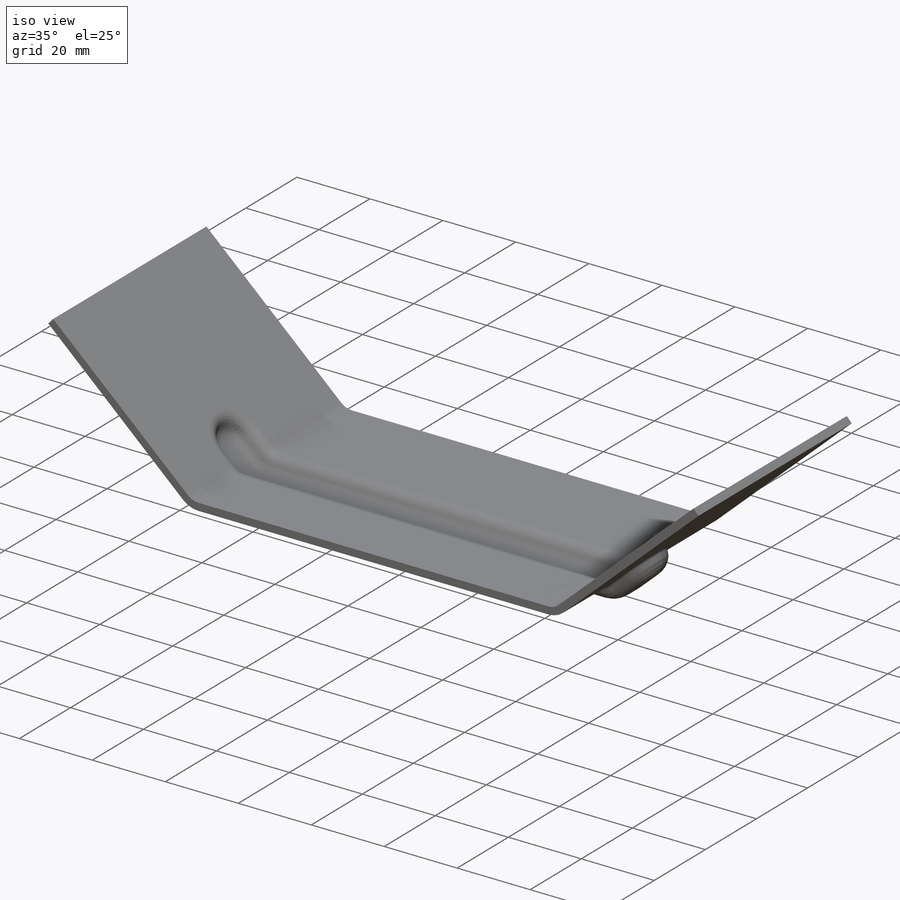
[diagram: iso view]
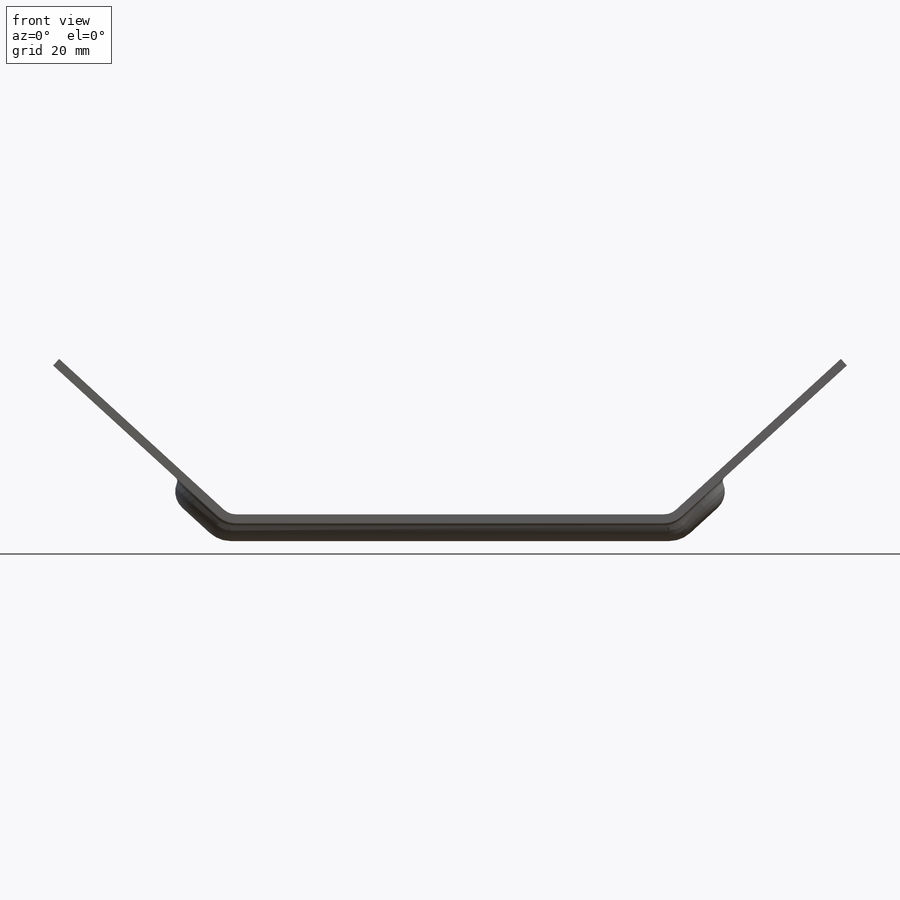
[diagram: front view]
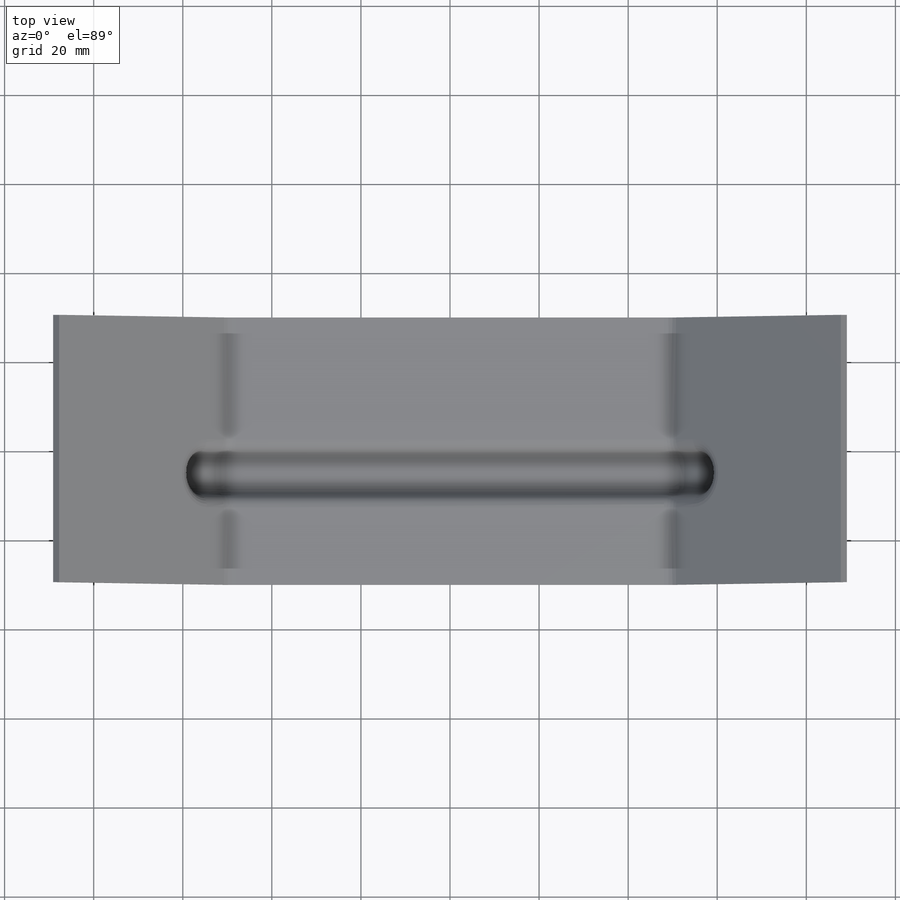
[diagram: top view]
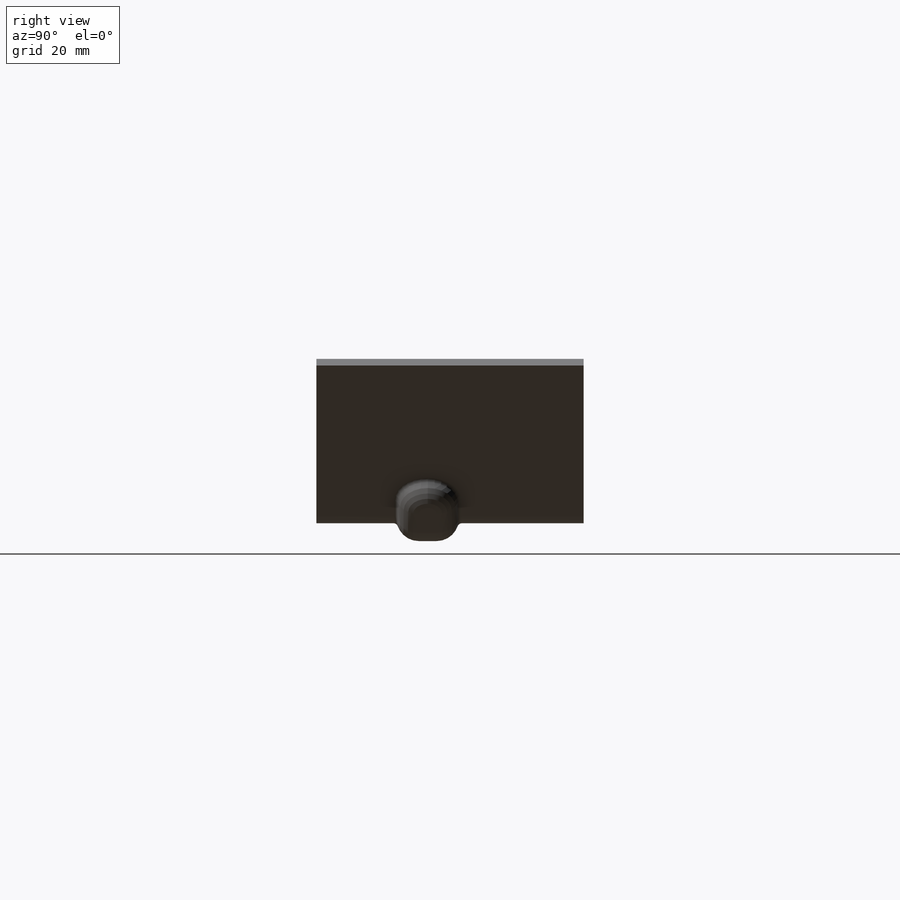
[diagram: right view]
SOLIDWORKS PART (.sldprt)
format: sldprt  version: not decoded by parser v0  size: 377,344 bytes
history: native  units: mm
features: sheet_metal_op x5, fillet x4, plane x3, material x1, sketch x1, delete_body x1 + 3 further entries (+13 scaffold rows collapsed)
feature tree (31):
  scaffold x13  (default folders/planes/origin — collapsed)
  material  "Materiał <nieokreślony>"
  plane  "Płaszczyzna przednia"
  plane  "Płaszczyzna górna"
  plane  "Płaszczyzna prawa"
  sketch  "Szkic1"
  sheet_metal_op  "Arkusz blachy1"  Grubość=2mm
  sheet_metal_op  "Odgięcie bazowe1"
  sheet_metal_op  "Zgięcie bazowe2"
  sheet_metal_op  "Szkic1<2>"
  fillet  "Zaokrąglenie1"  Radius=5mm
  fillet  "Zaokrąglenie2"  Radius=5mm
  fillet  "Zaokrąglenie3"  Radius=3mm
  delete_body  "Obiekt-Usuń1"
  fillet  "Zaokrąglenie4"  Radius=3mm
  "Rozłożony model1"
  sheet_metal_op  "Linie zgięcia1"
  "Rozłożone-<Zgięcie bazowe2>1"
  "Transformacja szkicu1"
decode coverage: 5 of 11 modeling features carry decoded parameters; 3 rows unclassified (native names shown)
note: suppression state not decoded; provenance and decode notes live in map.json
